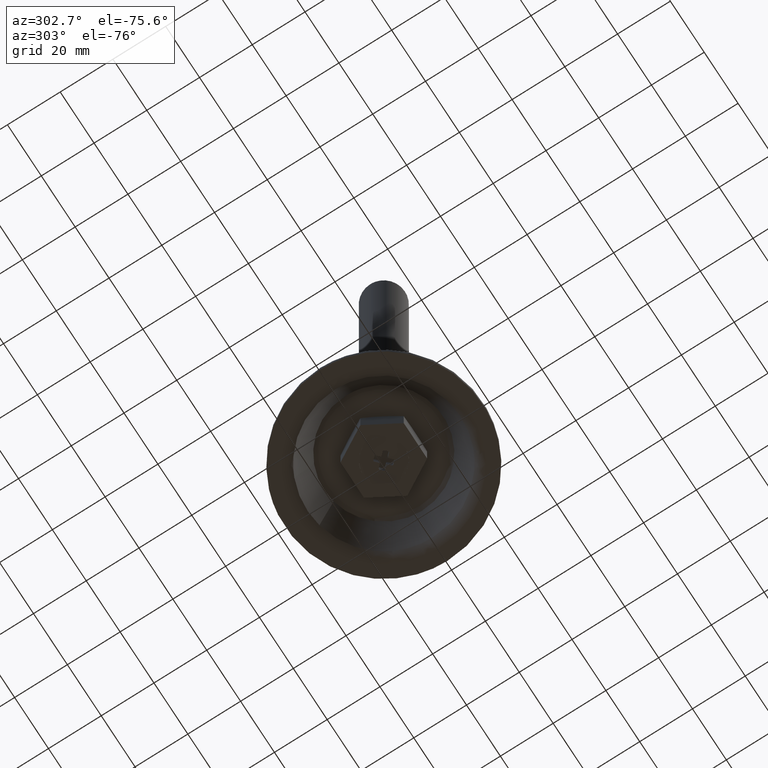
[diagram: clean part render]
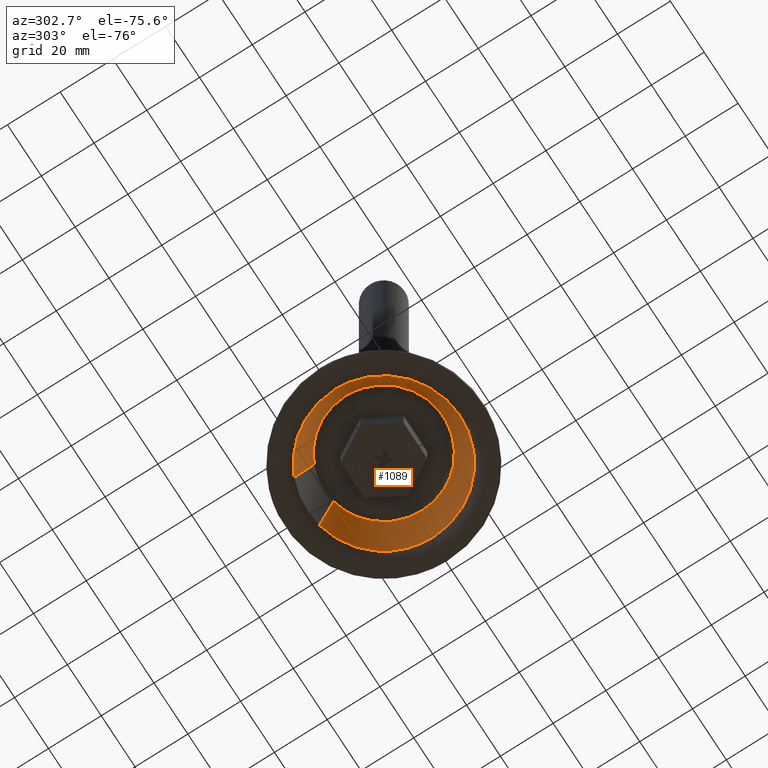
[diagram: same view with one face highlighted and labeled with its STEP entity id]
A machine part, auxiliary view. The second image highlights one B-rep face of the part: STEP entity #1089.
In plain terms, the highlighted face is a freeform B-spline surface patch.
Its self-contained STEP definition (entity closure, byte-faithful):
#893=CARTESIAN_POINT('',(4.664071262632565,21.889087877139847,15.601417421206135));
#894=CARTESIAN_POINT('',(15.930792493925155,19.488403526384243,15.601417421206135));
#895=CARTESIAN_POINT('',(20.524241453473639,8.924194170656520,15.601417421206129));
#896=CARTESIAN_POINT('',(29.448435624130163,-11.600047282817123,15.601417421206136));
#897=CARTESIAN_POINT('',(8.924194170656520,-20.524241453473639,15.601417421206129));
#898=CARTESIAN_POINT('',(-11.600047282817123,-29.448435624130163,15.601417421206136));
#899=CARTESIAN_POINT('',(-20.524241453473639,-8.924194170656520,15.601417421206129));
#900=CARTESIAN_POINT('',(-29.448435624130163,11.600047282817123,15.601417421206136));
#901=CARTESIAN_POINT('',(-8.924194170656520,20.524241453473639,15.601417421206129));
#902=CARTESIAN_POINT('',(6.065747420896253,28.467334836901777,1.902941291876204));
#903=CARTESIAN_POINT('',(20.718414887236804,25.345181660202122,1.902941291876204));
#904=CARTESIAN_POINT('',(26.692316144412949,11.606149375960269,1.902941291876203));
#905=CARTESIAN_POINT('',(38.298465520373213,-15.086166768452687,1.902941291876204));
#906=CARTESIAN_POINT('',(11.606149375960269,-26.692316144412949,1.902941291876204));
#907=CARTESIAN_POINT('',(-15.086166768452687,-38.298465520373213,1.902941291876204));
#908=CARTESIAN_POINT('',(-26.692316144412949,-11.606149375960269,1.902941291876203));
#909=CARTESIAN_POINT('',(-38.298465520373213,15.086166768452687,1.902941291876204));
#910=CARTESIAN_POINT('',(-11.606149375960269,26.692316144412949,1.902941291876203));
#918=(BOUNDED_SURFACE()B_SPLINE_SURFACE(2,1,((#893,#902),(#894,#903),(#895,#904),(#896,#905),(#897,#906),(#898,#907),(#899,#908),(#900,#909),(#901,#910)),.UNSPECIFIED.,.F.,.F.,.U.)B_SPLINE_SURFACE_WITH_KNOTS((3,2,2,2,3),(2,2),(0.0,28.935036210566970,77.160096561511921,125.385156912456910,173.610217263401810),(0.0,15.260611959619570),.UNSPECIFIED.)GEOMETRIC_REPRESENTATION_ITEM()RATIONAL_B_SPLINE_SURFACE(((0.859411254969543,0.859411254969543),(0.824264068711928,0.824264068711928),(1.0,1.0),(0.707106781186548,0.707106781186548),(1.0,1.0),(0.707106781186548,0.707106781186548),(1.0,1.0),(0.707106781186548,0.707106781186548),(1.0,1.0)))REPRESENTATION_ITEM('')SURFACE());
#919=CARTESIAN_POINT('',(4.697424651733070,22.045619631600740,15.275457250341329));
#920=VERTEX_POINT('',#919);
#921=CARTESIAN_POINT('',(17.185852382962072,14.584979298080309,15.275457251561161));
#922=VERTEX_POINT('',#921);
#923=CARTESIAN_POINT('',(4.697424651733070,22.045619631600736,15.275457250341328));
#924=CARTESIAN_POINT('',(12.213412258083640,20.444132077086785,15.275457250647358));
#925=CARTESIAN_POINT('',(17.185852382962068,14.584979298080311,15.275457251561154));
#933=(BOUNDED_CURVE()B_SPLINE_CURVE(2,(#923,#924,#925),.UNSPECIFIED.,.F.,.U.)B_SPLINE_CURVE_WITH_KNOTS((3,3),(0.285691453961388,0.387331629833391),.UNSPECIFIED.)CURVE()GEOMETRIC_REPRESENTATION_ITEM()RATIONAL_B_SPLINE_CURVE((0.928309266285944,0.843231178130937,0.854978670802092))REPRESENTATION_ITEM(''));
#934=EDGE_CURVE('',#920,#922,#933,.T.);
#935=ORIENTED_EDGE('',*,*,#934,.F.);
#936=CARTESIAN_POINT('',(6.031560197488300,28.306889787767240,2.237050468413476));
#937=VERTEX_POINT('',#936);
#938=CARTESIAN_POINT('',(4.697424651733070,22.045619631600740,15.275457250341329));
#939=CARTESIAN_POINT('',(6.031560197488300,28.306889787767240,2.237050468413476));
#940=QUASI_UNIFORM_CURVE('',1,(#938,#939),.UNSPECIFIED.,.F.,.U.);
#941=EDGE_CURVE('',#920,#937,#940,.T.);
#942=ORIENTED_EDGE('',*,*,#941,.T.);
#943=CARTESIAN_POINT('',(25.704757551503381,13.301322008251370,2.237050465762298));
#944=VERTEX_POINT('',#943);
#945=CARTESIAN_POINT('',(6.031560197488300,28.306889787767240,2.237050468413476));
#946=CARTESIAN_POINT('',(19.415625631205661,25.455047110763118,2.237050467941291));
#947=CARTESIAN_POINT('',(25.704757551503377,13.301322008251372,2.237050465762298));
#955=(BOUNDED_CURVE()B_SPLINE_CURVE(2,(#945,#946,#947),.UNSPECIFIED.,.F.,.U.)B_SPLINE_CURVE_WITH_KNOTS((3,3),(0.285691453958832,0.421825371002069),.UNSPECIFIED.)CURVE()GEOMETRIC_REPRESENTATION_ITEM()RATIONAL_B_SPLINE_CURVE((0.928309266290223,0.814358131357046,0.874103860135266))REPRESENTATION_ITEM(''));
#956=EDGE_CURVE('',#937,#944,#955,.T.);
#957=ORIENTED_EDGE('',*,*,#956,.T.);
#958=CARTESIAN_POINT('',(28.942351802662198,0.0,2.237050468566515));
#959=VERTEX_POINT('',#958);
#960=CARTESIAN_POINT('',(25.704757551503381,13.301322008251374,2.237050465762299));
#961=CARTESIAN_POINT('',(28.942351802662195,7.044682610779137,2.237050468566515));
#962=CARTESIAN_POINT('',(28.942351802662198,0.0,2.237050468566515));
#970=(BOUNDED_CURVE()B_SPLINE_CURVE(2,(#960,#961,#962),.UNSPECIFIED.,.F.,.U.)B_SPLINE_CURVE_WITH_KNOTS((3,3),(0.421825371002069,0.500000000000000),.UNSPECIFIED.)CURVE()GEOMETRIC_REPRESENTATION_ITEM()RATIONAL_B_SPLINE_CURVE((0.874103860135266,0.908412725132994,1.0))REPRESENTATION_ITEM(''));
#971=EDGE_CURVE('',#944,#959,#970,.T.);
#972=ORIENTED_EDGE('',*,*,#971,.T.);
#973=CARTESIAN_POINT('',(11.809436057822570,-26.423416658508341,2.237050467022852));
#974=VERTEX_POINT('',#973);
#975=CARTESIAN_POINT('',(28.942351802662198,0.0,2.237050468566515));
#976=CARTESIAN_POINT('',(28.942351802662195,-18.766190660427704,2.237050468566515));
#977=CARTESIAN_POINT('',(11.809436057822563,-26.423416658508337,2.237050467022852));
#985=(BOUNDED_CURVE()B_SPLINE_CURVE(2,(#975,#976,#977),.UNSPECIFIED.,.F.,.U.)B_SPLINE_CURVE_WITH_KNOTS((3,3),(0.500000000000000,0.680709483577435),.UNSPECIFIED.)CURVE()GEOMETRIC_REPRESENTATION_ITEM()RATIONAL_B_SPLINE_CURVE((1.0,0.788285670739554,0.882641638331893))REPRESENTATION_ITEM(''));
#986=EDGE_CURVE('',#959,#974,#985,.T.);
#987=ORIENTED_EDGE('',*,*,#986,.T.);
#988=CARTESIAN_POINT('',(-28.942351802662198,0.0,2.237050468566515));
#989=VERTEX_POINT('',#988);
#990=CARTESIAN_POINT('',(11.809436057822566,-26.423416658508348,2.237050467022853));
#991=CARTESIAN_POINT('',(6.173360588556925,-28.942351802662195,2.237050468566515));
#992=CARTESIAN_POINT('',(0.0,-28.942351802662198,2.237050468566515));
#993=CARTESIAN_POINT('',(-28.942351802662202,-28.942351802662202,2.237050468566515));
#994=CARTESIAN_POINT('',(-28.942351802662198,0.0,2.237050468566515));
#1002=(BOUNDED_CURVE()B_SPLINE_CURVE(2,(#990,#991,#992,#993,#994),.UNSPECIFIED.,.F.,.U.)B_SPLINE_CURVE_WITH_KNOTS((3,2,3),(0.680709483577434,0.750000000000000,1.0),.UNSPECIFIED.)CURVE()GEOMETRIC_REPRESENTATION_ITEM()RATIONAL_B_SPLINE_CURVE((0.882641638331893,0.918821110446993,1.0,0.707106781186548,1.0))REPRESENTATION_ITEM(''));
#1003=EDGE_CURVE('',#974,#989,#1002,.T.);
#1004=ORIENTED_EDGE('',*,*,#1003,.T.);
#1005=CARTESIAN_POINT('',(-11.540735833948180,26.541875296984522,2.237050468545784));
#1006=VERTEX_POINT('',#1005);
#1007=CARTESIAN_POINT('',(-28.942351802662198,0.0,2.237050468566515));
#1008=CARTESIAN_POINT('',(-28.942351802662195,18.975437329262878,2.237050468566515));
#1009=CARTESIAN_POINT('',(-11.540735833948180,26.541875296984522,2.237050468545783));
#1017=(BOUNDED_CURVE()B_SPLINE_CURVE(2,(#1007,#1008,#1009),.UNSPECIFIED.,.F.,.U.)B_SPLINE_CURVE_WITH_KNOTS((3,3),(0.0,0.182294095772130),.UNSPECIFIED.)CURVE()GEOMETRIC_REPRESENTATION_ITEM()RATIONAL_B_SPLINE_CURVE((1.0,0.786429182074452,0.884319957245320))REPRESENTATION_ITEM(''));
#1018=EDGE_CURVE('',#989,#1006,#1017,.T.);
#1019=ORIENTED_EDGE('',*,*,#1018,.T.);
#1020=CARTESIAN_POINT('',(-8.988012260282858,20.671013011214459,15.275457250316450));
#1021=VERTEX_POINT('',#1020);
#1022=CARTESIAN_POINT('',(-8.988012260282858,20.671013011214459,15.275457250316450));
#1023=CARTESIAN_POINT('',(-11.540735833948180,26.541875296984522,2.237050468545784));
#1024=QUASI_UNIFORM_CURVE('',1,(#1022,#1023),.UNSPECIFIED.,.F.,.U.);
#1025=EDGE_CURVE('',#1021,#1006,#1024,.T.);
#1026=ORIENTED_EDGE('',*,*,#1025,.F.);
#1027=CARTESIAN_POINT('',(-22.540522249954751,0.0,15.275457250320400));
#1028=VERTEX_POINT('',#1027);
#1029=CARTESIAN_POINT('',(-22.540522249954751,0.0,15.275457250320400));
#1030=CARTESIAN_POINT('',(-22.540522249954748,14.778213955884176,15.275457250320395));
#1031=CARTESIAN_POINT('',(-8.988012260282858,20.671013011214452,15.275457250316451));
#1039=(BOUNDED_CURVE()B_SPLINE_CURVE(2,(#1029,#1030,#1031),.UNSPECIFIED.,.F.,.U.)B_SPLINE_CURVE_WITH_KNOTS((3,3),(0.0,0.182294095773250),.UNSPECIFIED.)CURVE()GEOMETRIC_REPRESENTATION_ITEM()RATIONAL_B_SPLINE_CURVE((1.0,0.786429182073140,0.884319957246523))REPRESENTATION_ITEM(''));
#1040=EDGE_CURVE('',#1028,#1021,#1039,.T.);
#1041=ORIENTED_EDGE('',*,*,#1040,.F.);
#1042=CARTESIAN_POINT('',(15.544004679490740,-16.323573806403520,15.275457250630440));
#1043=VERTEX_POINT('',#1042);
#1044=CARTESIAN_POINT('',(15.544004679490737,-16.323573806403520,15.275457250630435));
#1045=CARTESIAN_POINT('',(9.015261356541648,-22.540522249954751,15.275457250320406));
#1046=CARTESIAN_POINT('',(0.0,-22.540522249954751,15.275457250320400));
#1047=CARTESIAN_POINT('',(-22.540522249954755,-22.540522249954755,15.275457250320406));
#1048=CARTESIAN_POINT('',(-22.540522249954751,0.0,15.275457250320400));
#1056=(BOUNDED_CURVE()B_SPLINE_CURVE(2,(#1044,#1045,#1046,#1047,#1048),.UNSPECIFIED.,.F.,.U.)B_SPLINE_CURVE_WITH_KNOTS((3,2,3),(0.628690594339548,0.750000000000000,1.0),.UNSPECIFIED.)CURVE()GEOMETRIC_REPRESENTATION_ITEM()RATIONAL_B_SPLINE_CURVE((0.853681049734264,0.857877190815053,1.0,0.707106781186547,1.0))REPRESENTATION_ITEM(''));
#1057=EDGE_CURVE('',#1043,#1028,#1056,.T.);
#1058=ORIENTED_EDGE('',*,*,#1057,.F.);
#1059=CARTESIAN_POINT('',(22.540522249954751,0.0,15.275457250320400));
#1060=VERTEX_POINT('',#1059);
#1061=CARTESIAN_POINT('',(22.540522249954751,0.0,15.275457250320400));
#1062=CARTESIAN_POINT('',(22.540522249954741,-9.661190731503819,15.275457250320404));
#1063=CARTESIAN_POINT('',(15.544004679490747,-16.323573806403520,15.275457250630433));
#1071=(BOUNDED_CURVE()B_SPLINE_CURVE(2,(#1061,#1062,#1063),.UNSPECIFIED.,.F.,.U.)B_SPLINE_CURVE_WITH_KNOTS((3,3),(0.500000000000000,0.628690594339549),.UNSPECIFIED.)CURVE()GEOMETRIC_REPRESENTATION_ITEM()RATIONAL_B_SPLINE_CURVE((1.0,0.849229590371493,0.853681049734265))REPRESENTATION_ITEM(''));
#1072=EDGE_CURVE('',#1060,#1043,#1071,.T.);
#1073=ORIENTED_EDGE('',*,*,#1072,.F.);
#1074=CARTESIAN_POINT('',(17.185852382962068,14.584979298080311,15.275457251561154));
#1075=CARTESIAN_POINT('',(22.540522249954751,8.275435486637418,15.275457250320398));
#1076=CARTESIAN_POINT('',(22.540522249954751,0.0,15.275457250320400));
#1084=(BOUNDED_CURVE()B_SPLINE_CURVE(2,(#1074,#1075,#1076),.UNSPECIFIED.,.F.,.U.)B_SPLINE_CURVE_WITH_KNOTS((3,3),(0.387331629833391,0.500000000000000),.UNSPECIFIED.)CURVE()GEOMETRIC_REPRESENTATION_ITEM()RATIONAL_B_SPLINE_CURVE((0.854978670802092,0.868000793613745,1.0))REPRESENTATION_ITEM(''));
#1085=EDGE_CURVE('',#922,#1060,#1084,.T.);
#1086=ORIENTED_EDGE('',*,*,#1085,.F.);
#1087=EDGE_LOOP('',(#935,#942,#957,#972,#987,#1004,#1019,#1026,#1041,#1058,#1073,#1086));
#1088=FACE_OUTER_BOUND('',#1087,.T.);
#1089=ADVANCED_FACE('',(#1088),#918,.F.);